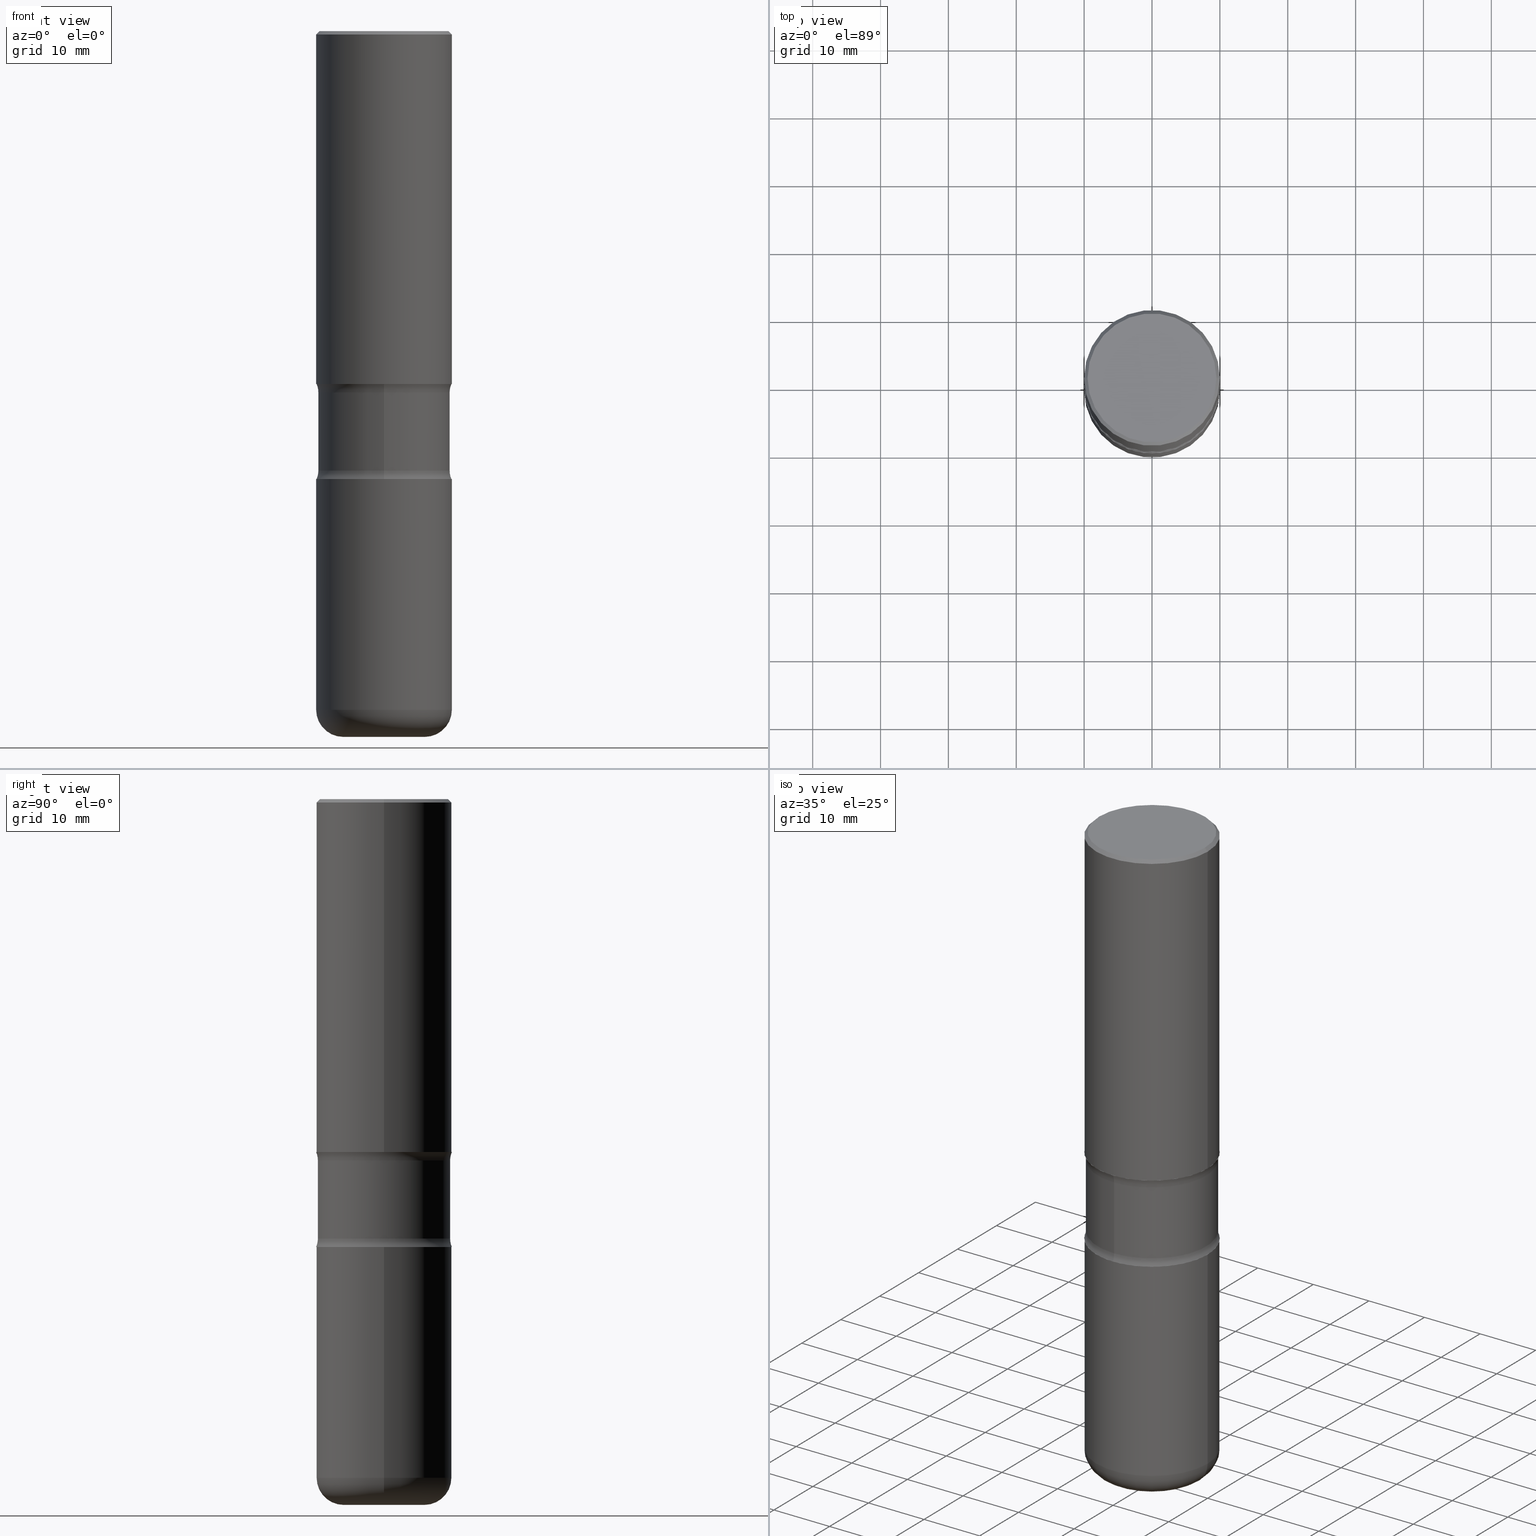
[diagram: canonical four-view strip — front | top / right | iso, engineering-drawing reading convention]
A machine part, canonical four-view strip (front | top / right | iso — engineering-drawing reading convention). The complete STEP part file that produces these views, byte-faithful:
ISO-10303-21;
HEADER;
FILE_DESCRIPTION (( 'STEP AP203' ),
    '1' );
FILE_NAME ('42738.STEP',
    '2024-03-02T02:20:32',
    ( '' ),
    ( '' ),
    'SwSTEP 2.0',
    'SolidWorks 2023',
    '' );
FILE_SCHEMA (( 'CONFIG_CONTROL_DESIGN' ));
ENDSEC;

DATA;
#1 = ORIENTED_EDGE ( 'NONE', *, *, #185, .F. ) ;
#2 = DIRECTION ( 'NONE',  ( 1.000000000000000000, -6.982962677686266711E-15, 4.876176775795935793E-29 ) ) ;
#3 = CIRCLE ( 'NONE', #556, 0.3736999999999997546 ) ;
#4 = EDGE_CURVE ( 'NONE', #108, #83, #428, .T. ) ;
#5 = DIRECTION ( 'NONE',  ( -2.445468806185136877E-29, 3.491481338843145188E-15, 1.000000000000000000 ) ) ;
#6 = ORIENTED_EDGE ( 'NONE', *, *, #102, .F. ) ;
#7 = DIRECTION ( 'NONE',  ( -2.445468806185136597E-29, 3.491481338843145583E-15, 1.000000000000000000 ) ) ;
#8 = FACE_OUTER_BOUND ( 'NONE', #26, .T. ) ;
#9 = ADVANCED_FACE ( 'NONE', ( #307 ), #364, .F. ) ;
#10 = TOROIDAL_SURFACE ( 'NONE', #182, 0.5084999999999999520, 0.1249999999999999584 ) ;
#11 = LOCAL_TIME ( 21, 20, 32.00000000000000000, #414 ) ;
#12 = ORIENTED_EDGE ( 'NONE', *, *, #64, .T. ) ;
#13 = DIRECTION ( 'NONE',  ( 6.982962677686265922E-15, 1.000000000000000000, -2.849385130288670661E-15 ) ) ;
#14 = MANIFOLD_SOLID_BREP ( 'Body-Move/Copy2[1]', #123 ) ;
#15 = CARTESIAN_POINT ( 'NONE',  ( 6.231851069229550354E-29, -8.901751109387401128E-15, -2.548943352317408095 ) ) ;
#16 = COORDINATED_UNIVERSAL_TIME_OFFSET ( 5, 0, .BEHIND. ) ;
#17 = DIRECTION ( 'NONE',  ( -1.000000000000000000, 6.982962677686266711E-15, 0.000000000000000000 ) ) ;
#18 = CIRCLE ( 'NONE', #173, 0.3937000000000002164 ) ;
#19 = VECTOR ( 'NONE', #5, 39.37007874015748143 ) ;
#20 = EDGE_CURVE ( 'NONE', #108, #89, #323, .T. ) ;
#21 = CALENDAR_DATE ( 2024, 1, 3 ) ;
#22 = CARTESIAN_POINT ( 'NONE',  ( 4.890937612370289799E-31, -6.982962677686315028E-17, -0.02000000000000006981 ) ) ;
#23 = CARTESIAN_POINT ( 'NONE',  ( 2.677966186892733991E-15, 0.3834999999999926246, -2.096756647682593400 ) ) ;
#24 = CARTESIAN_POINT ( 'NONE',  ( 1.005866236356776054E-28, -1.423043917928842489E-14, -4.094500000000000028 ) ) ;
#25 = PERSON_AND_ORGANIZATION ( #212, #160 ) ;
#26 = EDGE_LOOP ( 'NONE', ( #509, #256 ) ) ;
#27 = EDGE_CURVE ( 'NONE', #257, #431, #232, .T. ) ;
#28 = CARTESIAN_POINT ( 'NONE',  ( 6.354306145991457514E-29, -9.072265110850029467E-15, -2.598399999999999821 ) ) ;
#29 = FACE_OUTER_BOUND ( 'NONE', #409, .T. ) ;
#30 = AXIS2_PLACEMENT_3D ( 'NONE', #106, #228, #396 ) ;
#31 = EDGE_CURVE ( 'NONE', #83, #57, #429, .T. ) ;
#32 = DIRECTION ( 'NONE',  ( 2.476008433645011479E-29, -3.447746854112956913E-15, -1.000000000000000000 ) ) ;
#33 = CARTESIAN_POINT ( 'NONE',  ( -2.700978061722589721E-15, -0.3937000000000092648, -2.598399999999998489 ) ) ;
#34 = EDGE_LOOP ( 'NONE', ( #117, #12, #39, #416 ) ) ;
#35 = DIMENSIONAL_EXPONENTS ( 1.000000000000000000, 0.000000000000000000, 0.000000000000000000, 0.000000000000000000, 0.000000000000000000, 0.000000000000000000, 0.000000000000000000 ) ;
#36 = AXIS2_PLACEMENT_3D ( 'NONE', #181, #266, #390 ) ;
#37 = DIRECTION ( 'NONE',  ( -1.000000000000000000, 6.982962677686266711E-15, 0.000000000000000000 ) ) ;
#38 = DIRECTION ( 'NONE',  ( 6.982962677686265922E-15, 1.000000000000000000, -2.775563112689115117E-15 ) ) ;
#39 = ORIENTED_EDGE ( 'NONE', *, *, #349, .F. ) ;
#40 = VERTEX_POINT ( 'NONE', #235 ) ;
#41 = EDGE_LOOP ( 'NONE', ( #457, #260, #451, #425 ) ) ;
#42 = CARTESIAN_POINT ( 'NONE',  ( 3.550836521603528374E-15, 0.5084999999999910703, -2.548943352317409428 ) ) ;
#43 = CC_DESIGN_PERSON_AND_ORGANIZATION_ASSIGNMENT ( #535, #272, ( #464 ) ) ;
#44 = DIRECTION ( 'NONE',  ( 6.982962677686265922E-15, 1.000000000000000000, -3.469453890861393995E-15 ) ) ;
#45 = AXIS2_PLACEMENT_3D ( 'NONE', #274, #225, #397 ) ;
#46 = CIRCLE ( 'NONE', #30, 0.3937000000000003830 ) ;
#47 = CARTESIAN_POINT ( 'NONE',  ( 0.3736999999999997546, -2.667287895133366781E-15, 1.280553747031968579E-17 ) ) ;
#48 = CARTESIAN_POINT ( 'NONE',  ( 6.231851069229550354E-29, -8.901751109387401128E-15, -2.548943352317408095 ) ) ;
#49 = FACE_OUTER_BOUND ( 'NONE', #334, .T. ) ;
#50 = DIRECTION ( 'NONE',  ( -1.000000000000000000, 6.982962677686265922E-15, -4.883557194083112901E-29 ) ) ;
#51 = EDGE_LOOP ( 'NONE', ( #413, #473, #159, #424 ) ) ;
#52 = DIRECTION ( 'NONE',  ( -2.445468806185136597E-29, 3.491481338843145583E-15, 1.000000000000000000 ) ) ;
#53 = AXIS2_PLACEMENT_3D ( 'NONE', #88, #52, #2 ) ;
#54 = APPLICATION_CONTEXT ( 'configuration controlled 3d designs of mechanical parts and assemblies' ) ;
#55 = DIRECTION ( 'NONE',  ( 2.476008433645011479E-29, -3.447746854112956913E-15, -1.000000000000000000 ) ) ;
#56 = DATE_TIME_ROLE ( 'classification_date' ) ;
#57 = VERTEX_POINT ( 'NONE', #284 ) ;
#58 = EDGE_LOOP ( 'NONE', ( #316, #166, #420, #322 ) ) ;
#59 = CIRCLE ( 'NONE', #430, 0.3936999999999998279 ) ;
#60 = ADVANCED_FACE ( 'NONE', ( #380 ), #271, .F. ) ;
#61 = ORIENTED_EDGE ( 'NONE', *, *, #442, .T. ) ;
#62 = DATE_AND_TIME ( #448, #255 ) ;
#63 = PRODUCT_RELATED_PRODUCT_CATEGORY ( 'detail', '', ( #239 ) ) ;
#64 = EDGE_CURVE ( 'NONE', #204, #171, #121, .T. ) ;
#65 = CARTESIAN_POINT ( 'NONE',  ( -3.131554243005659264E-46, 4.471029511141341874E-32, 1.280553747030123384E-17 ) ) ;
#66 = CARTESIAN_POINT ( 'NONE',  ( -0.3937000000000001609, -8.115629352077008460E-16, -2.047299999999999898 ) ) ;
#67 = CARTESIAN_POINT ( 'NONE',  ( -2.665989521933967693E-15, -0.3835000000000073905, -2.096756647682590735 ) ) ;
#68 = ADVANCED_FACE ( 'NONE', ( #298 ), #199, .F. ) ;
#69 = ORIENTED_EDGE ( 'NONE', *, *, #332, .F. ) ;
#70 = DIRECTION ( 'NONE',  ( -2.438088387897960049E-29, 3.491481338843145188E-15, 1.000000000000000000 ) ) ;
#71 = LOCAL_TIME ( 21, 20, 32.00000000000000000, #403 ) ;
#72 = ORIENTED_EDGE ( 'NONE', *, *, #76, .T. ) ;
#73 = CALENDAR_DATE ( 2024, 1, 3 ) ;
#74 = FACE_OUTER_BOUND ( 'NONE', #376, .T. ) ;
#75 = DIRECTION ( 'NONE',  ( 2.476008433645011479E-29, -3.447746854112956913E-15, -1.000000000000000000 ) ) ;
#76 = EDGE_CURVE ( 'NONE', #206, #382, #113, .T. ) ;
#77 = DATE_AND_TIME ( #73, #11 ) ;
#78 = AXIS2_PLACEMENT_3D ( 'NONE', #549, #187, #37 ) ;
#79 = CIRCLE ( 'NONE', #169, 0.3835000000000000075 ) ;
#80 = CARTESIAN_POINT ( 'NONE',  ( 6.354306145991457514E-29, -9.072265110850029467E-15, -2.598399999999999821 ) ) ;
#81 = EDGE_CURVE ( 'NONE', #162, #109, #18, .T. ) ;
#82 = DIRECTION ( 'NONE',  ( 6.860497997771532351E-15, 1.000000000000000000, 0.000000000000000000 ) ) ;
#83 = VERTEX_POINT ( 'NONE', #23 ) ;
#84 = CYLINDRICAL_SURFACE ( 'NONE', #344, 0.3835000000000000075 ) ;
#85 = PLANE ( 'NONE',  #521 ) ;
#86 = AXIS2_PLACEMENT_3D ( 'NONE', #170, #558, #207 ) ;
#87 = FACE_OUTER_BOUND ( 'NONE', #384, .T. ) ;
#88 = CARTESIAN_POINT ( 'NONE',  ( 0.000000000000000000, 0.000000000000000000, 0.000000000000000000 ) ) ;
#89 = VERTEX_POINT ( 'NONE', #167 ) ;
#90 = APPROVAL_DATE_TIME ( #329, #268 ) ;
#91 = DIRECTION ( 'NONE',  ( 2.476008433645011479E-29, -3.447746854112956519E-15, -1.000000000000000000 ) ) ;
#92 = CIRCLE ( 'NONE', #472, 0.3937000000000001054 ) ;
#93 = CC_DESIGN_APPROVAL ( #268, ( #297 ) ) ;
#94 = DATE_AND_TIME ( #366, #331 ) ;
#95 = EDGE_CURVE ( 'NONE', #382, #206, #351, .T. ) ;
#96 = EDGE_LOOP ( 'NONE', ( #208, #72 ) ) ;
#97 = PLANE ( 'NONE',  #296 ) ;
#98 = ORIENTED_EDGE ( 'NONE', *, *, #502, .F. ) ;
#99 = APPROVAL_STATUS ( 'not_yet_approved' ) ;
#100 = EDGE_LOOP ( 'NONE', ( #164, #285 ) ) ;
#101 = VECTOR ( 'NONE', #511, 39.37007874015748143 ) ;
#102 = EDGE_CURVE ( 'NONE', #431, #109, #372, .T. ) ;
#103 = EDGE_LOOP ( 'NONE', ( #157, #69, #319, #61 ) ) ;
#104 = CARTESIAN_POINT ( 'NONE',  ( 0.000000000000000000, 0.000000000000000000, 0.000000000000000000 ) ) ;
#105 = DIRECTION ( 'NONE',  ( -0.7071067811865471286, 2.468850131082252722E-15, -0.7071067811865479058 ) ) ;
#106 = CARTESIAN_POINT ( 'NONE',  ( 9.627810689950881427E-29, -1.374596203102546184E-14, -3.936999999999999389 ) ) ;
#107 = APPROVAL_DATE_TIME ( #77, #283 ) ;
#108 = VERTEX_POINT ( 'NONE', #67 ) ;
#109 = VERTEX_POINT ( 'NONE', #335 ) ;
#110 = ORIENTED_EDGE ( 'NONE', *, *, #4, .T. ) ;
#111 = ORIENTED_EDGE ( 'NONE', *, *, #226, .T. ) ;
#112 = CIRCLE ( 'NONE', #439, 0.2362000000000003819 ) ;
#113 = CIRCLE ( 'NONE', #168, 0.3937000000000002164 ) ;
#114 =( GEOMETRIC_REPRESENTATION_CONTEXT ( 3 ) GLOBAL_UNCERTAINTY_ASSIGNED_CONTEXT ( ( #491 ) ) GLOBAL_UNIT_ASSIGNED_CONTEXT ( ( #315, #540, #144 ) ) REPRESENTATION_CONTEXT ( 'NONE', 'WORKASPACE' ) );
#115 = SHAPE_DEFINITION_REPRESENTATION ( #150, #253 ) ;
#116 = CC_DESIGN_PERSON_AND_ORGANIZATION_ASSIGNMENT ( #527, #138, ( #297 ) ) ;
#117 = ORIENTED_EDGE ( 'NONE', *, *, #328, .T. ) ;
#118 = DIRECTION ( 'NONE',  ( -6.982962677686266711E-15, -1.000000000000000000, 3.491481338843145583E-15 ) ) ;
#119 = EDGE_CURVE ( 'NONE', #40, #310, #112, .T. ) ;
#120 = ORIENTED_EDGE ( 'NONE', *, *, #226, .F. ) ;
#121 = LINE ( 'NONE', #339, #411 ) ;
#122 = ADVANCED_FACE ( 'NONE', ( #541 ), #231, .T. ) ;
#123 = CLOSED_SHELL ( 'NONE', ( #383, #240, #218, #455, #476, #270 ) ) ;
#124 = DIRECTION ( 'NONE',  ( 2.476008433645011479E-29, -3.447746854112956913E-15, -1.000000000000000000 ) ) ;
#125 = DIRECTION ( 'NONE',  ( 6.982962677686265922E-15, 1.000000000000000000, -2.849385130288670661E-15 ) ) ;
#126 = DIRECTION ( 'NONE',  ( 6.982962677686265133E-15, 1.000000000000000000, -3.447746854112956913E-15 ) ) ;
#127 = DIRECTION ( 'NONE',  ( -2.445468806185136597E-29, 3.491481338843145583E-15, 1.000000000000000000 ) ) ;
#128 = AXIS2_PLACEMENT_3D ( 'NONE', #358, #498, #410 ) ;
#129 = LINE ( 'NONE', #304, #19 ) ;
#130 = TOROIDAL_SURFACE ( 'NONE', #254, 0.2362000000000003264, 0.1574999999999998346 ) ;
#131 = FACE_OUTER_BOUND ( 'NONE', #362, .T. ) ;
#132 = ADVANCED_FACE ( 'NONE', ( #485 ), #241, .T. ) ;
#133 = CARTESIAN_POINT ( 'NONE',  ( 2.749192406205147903E-15, 0.3936999999999912236, -2.598400000000000709 ) ) ;
#134 = DIRECTION ( 'NONE',  ( -2.476008433645011199E-29, 3.447746854112956519E-15, 1.000000000000000000 ) ) ;
#135 = CARTESIAN_POINT ( 'NONE',  ( 1.005866236356776054E-28, -1.423043917928842489E-14, -4.094500000000000028 ) ) ;
#136 = CARTESIAN_POINT ( 'NONE',  ( -0.3937000000000002164, -8.611706820250229288E-15, -2.598399999999999821 ) ) ;
#137 = FACE_OUTER_BOUND ( 'NONE', #492, .T. ) ;
#138 = PERSON_AND_ORGANIZATION_ROLE ( 'design_supplier' ) ;
#139 = DIRECTION ( 'NONE',  ( -2.445468806185136597E-29, 3.491481338843145583E-15, 1.000000000000000000 ) ) ;
#140 = DIRECTION ( 'NONE',  ( 6.982962677686265133E-15, 1.000000000000000000, -3.447746854112956913E-15 ) ) ;
#141 = ADVANCED_FACE ( 'NONE', ( #538 ), #367, .F. ) ;
#142 = CYLINDRICAL_SURFACE ( 'NONE', #287, 0.3835000000000000075 ) ;
#143 = DIRECTION ( 'NONE',  ( -1.000000000000000000, 6.982962677686265922E-15, -4.876176775795935793E-29 ) ) ;
#144 =( NAMED_UNIT ( * ) SI_UNIT ( $, .STERADIAN. ) SOLID_ANGLE_UNIT ( ) );
#145 = AXIS2_PLACEMENT_3D ( 'NONE', #22, #395, #17 ) ;
#146 = CIRCLE ( 'NONE', #337, 0.3936999999999998279 ) ;
#147 = ADVANCED_FACE ( 'NONE', ( #29 ), #493, .T. ) ;
#148 = PERSON_AND_ORGANIZATION_ROLE ( 'design_owner' ) ;
#149 = DIRECTION ( 'NONE',  ( 1.000000000000000000, -6.982962677686269077E-15, 0.000000000000000000 ) ) ;
#150 = PRODUCT_DEFINITION_SHAPE ( 'NONE', 'NONE',  #193 ) ;
#151 = DIRECTION ( 'NONE',  ( -1.000000000000000000, 7.105427357601005014E-15, 0.000000000000000000 ) ) ;
#152 = DIRECTION ( 'NONE',  ( -2.445468806185136597E-29, 3.491481338843145583E-15, 1.000000000000000000 ) ) ;
#153 = EDGE_CURVE ( 'NONE', #40, #257, #189, .T. ) ;
#154 = APPROVAL_ROLE ( '' ) ;
#155 = FACE_OUTER_BOUND ( 'NONE', #34, .T. ) ;
#156 = DIRECTION ( 'NONE',  ( 2.476008433645011479E-29, -3.447746854112956913E-15, -1.000000000000000000 ) ) ;
#157 = ORIENTED_EDGE ( 'NONE', *, *, #222, .F. ) ;
#158 = AXIS2_PLACEMENT_3D ( 'NONE', #42, #50, #426 ) ;
#159 = ORIENTED_EDGE ( 'NONE', *, *, #502, .T. ) ;
#160 = ORGANIZATION ( 'UNSPECIFIED', 'UNSPECIFIED', '' ) ;
#161 = CARTESIAN_POINT ( 'NONE',  ( 9.627810689950881427E-29, -1.374596203102546184E-14, -3.936999999999999389 ) ) ;
#162 = VERTEX_POINT ( 'NONE', #136 ) ;
#163 = VERTEX_POINT ( 'NONE', #405 ) ;
#164 = ORIENTED_EDGE ( 'NONE', *, *, #185, .T. ) ;
#165 = DIRECTION ( 'NONE',  ( 6.982962677686265922E-15, 1.000000000000000000, -2.849385130288670661E-15 ) ) ;
#166 = ORIENTED_EDGE ( 'NONE', *, *, #95, .F. ) ;
#167 = CARTESIAN_POINT ( 'NONE',  ( -2.665989521933955072E-15, -0.3835000000000088893, -2.548943352317407207 ) ) ;
#168 = AXIS2_PLACEMENT_3D ( 'NONE', #80, #203, #552 ) ;
#169 = AXIS2_PLACEMENT_3D ( 'NONE', #48, #394, #13 ) ;
#170 = CARTESIAN_POINT ( 'NONE',  ( -3.488563231866761079E-15, -0.5085000000000088338, -2.548943352317405875 ) ) ;
#171 = VERTEX_POINT ( 'NONE', #281 ) ;
#172 = CC_DESIGN_PERSON_AND_ORGANIZATION_ASSIGNMENT ( #355, #495, ( #297 ) ) ;
#173 = AXIS2_PLACEMENT_3D ( 'NONE', #28, #200, #546 ) ;
#174 = AXIS2_PLACEMENT_3D ( 'NONE', #365, #184, #276 ) ;
#175 = CARTESIAN_POINT ( 'NONE',  ( 2.609533152651355831E-15, 0.3736999999999997546, -1.298363807590532206E-15 ) ) ;
#176 = FACE_OUTER_BOUND ( 'NONE', #379, .T. ) ;
#177 = ORIENTED_EDGE ( 'NONE', *, *, #222, .T. ) ;
#178 = EDGE_CURVE ( 'NONE', #462, #171, #532, .T. ) ;
#179 = CARTESIAN_POINT ( 'NONE',  ( -2.700978061722603132E-15, -0.3937000000000074884, -2.047299999999998565 ) ) ;
#180 = CARTESIAN_POINT ( 'NONE',  ( 4.890937612370289799E-31, -6.982962677686315028E-17, -0.02000000000000006981 ) ) ;
#181 = CARTESIAN_POINT ( 'NONE',  ( 5.006608286902829344E-29, -7.148109745013571714E-15, -2.047299999999999898 ) ) ;
#182 = AXIS2_PLACEMENT_3D ( 'NONE', #183, #529, #126 ) ;
#183 = CARTESIAN_POINT ( 'NONE',  ( 6.233361456825190849E-29, -8.899588148384518828E-15, -2.548943352317407651 ) ) ;
#184 = DIRECTION ( 'NONE',  ( 0.000000000000000000, 0.000000000000000000, 1.000000000000000000 ) ) ;
#185 = EDGE_CURVE ( 'NONE', #109, #162, #214, .T. ) ;
#186 = DIRECTION ( 'NONE',  ( 2.438088387897960049E-29, -3.491481338843145188E-15, -1.000000000000000000 ) ) ;
#187 = DIRECTION ( 'NONE',  ( 2.445468806185136597E-29, -3.491481338843145583E-15, -1.000000000000000000 ) ) ;
#188 = APPLICATION_PROTOCOL_DEFINITION ( 'international standard', 'config_control_design', 1994, #54 ) ;
#189 = CIRCLE ( 'NONE', #453, 0.1574999999999998346 ) ;
#190 = TOROIDAL_SURFACE ( 'NONE', #402, 0.5084999999999999520, 0.1250000000000000278 ) ;
#191 = DIRECTION ( 'NONE',  ( 6.982962677686265922E-15, 1.000000000000000000, -2.849385130288670661E-15 ) ) ;
#192 = TOROIDAL_SURFACE ( 'NONE', #393, 0.2362000000000003264, 0.1574999999999998346 ) ;
#193 = PRODUCT_DEFINITION ( 'UNKNOWN', '', #297, #251 ) ;
#194 = PERSON_AND_ORGANIZATION_ROLE ( 'creator' ) ;
#195 = DIRECTION ( 'NONE',  ( -2.445468806185136597E-29, 3.491481338843145583E-15, 1.000000000000000000 ) ) ;
#196 = ORIENTED_EDGE ( 'NONE', *, *, #291, .F. ) ;
#197 = DIRECTION ( 'NONE',  ( -2.445468806185136597E-29, 3.491481338843145583E-15, 1.000000000000000000 ) ) ;
#198 = ORIENTED_EDGE ( 'NONE', *, *, #399, .F. ) ;
#199 = TOROIDAL_SURFACE ( 'NONE', #128, 0.5084999999999999520, 0.1249999999999999584 ) ;
#200 = DIRECTION ( 'NONE',  ( -2.445468806185136597E-29, 3.491481338843145583E-15, 1.000000000000000000 ) ) ;
#201 = MANIFOLD_SOLID_BREP ( 'Body-Move/Copy2[4]', #314 ) ;
#202 = CC_DESIGN_DATE_AND_TIME_ASSIGNMENT ( #441, #56, ( #464 ) ) ;
#203 = DIRECTION ( 'NONE',  ( 2.476008433645011479E-29, -3.447746854112956913E-15, -1.000000000000000000 ) ) ;
#204 = VERTEX_POINT ( 'NONE', #66 ) ;
#205 = APPROVAL_STATUS ( 'not_yet_approved' ) ;
#206 = VERTEX_POINT ( 'NONE', #33 ) ;
#207 = DIRECTION ( 'NONE',  ( 6.860497997771532351E-15, 1.000000000000000000, 0.000000000000000000 ) ) ;
#208 = ORIENTED_EDGE ( 'NONE', *, *, #95, .T. ) ;
#209 = CLOSED_SHELL ( 'NONE', ( #211, #147, #132, #398, #141, #122 ) ) ;
#210 = CIRCLE ( 'NONE', #86, 0.1249999999999999584 ) ;
#211 = ADVANCED_FACE ( 'NONE', ( #155 ), #496, .T. ) ;
#212 = PERSON ( 'UNSPECIFIED', 'UNSPECIFIED', 'UNSPECIFIED', ('UNSPECIFIED'), ('UNSPECIFIED'), ('UNSPECIFIED') ) ;
#213 = CARTESIAN_POINT ( 'NONE',  ( -3.131554243005659264E-46, 4.471029511141341874E-32, 1.280553747030123384E-17 ) ) ;
#214 = CIRCLE ( 'NONE', #533, 0.3937000000000002164 ) ;
#215 = AXIS2_PLACEMENT_3D ( 'NONE', #302, #124, #336 ) ;
#216 = DIRECTION ( 'NONE',  ( 2.438088387897960049E-29, -3.491481338843145188E-15, -1.000000000000000000 ) ) ;
#217 = LOCAL_TIME ( 21, 20, 32.00000000000000000, #16 ) ;
#218 = ADVANCED_FACE ( 'NONE', ( #74 ), #246, .T. ) ;
#219 = CARTESIAN_POINT ( 'NONE',  ( 0.3937000000000002164, -1.649515443723054663E-14, -3.936999999999999389 ) ) ;
#220 = CARTESIAN_POINT ( 'NONE',  ( 2.677966186892783295E-15, 0.3834999999999857967, -4.094500000000000917 ) ) ;
#221 = CARTESIAN_POINT ( 'NONE',  ( 0.000000000000000000, 0.000000000000000000, 0.000000000000000000 ) ) ;
#222 = EDGE_CURVE ( 'NONE', #236, #550, #477, .T. ) ;
#223 = CC_DESIGN_SECURITY_CLASSIFICATION ( #464, ( #297 ) ) ;
#224 = PERSON_AND_ORGANIZATION ( #212, #160 ) ;
#225 = DIRECTION ( 'NONE',  ( -2.445468806185136597E-29, 3.491481338843145583E-15, 1.000000000000000000 ) ) ;
#226 = EDGE_CURVE ( 'NONE', #431, #257, #46, .T. ) ;
#227 = CARTESIAN_POINT ( 'NONE',  ( 8.872370585012628009E-29, -5.466253514844332683E-15, -2.598400000000000265 ) ) ;
#228 = DIRECTION ( 'NONE',  ( -2.445468806185136597E-29, 3.491481338843145583E-15, 1.000000000000000000 ) ) ;
#229 = DIRECTION ( 'NONE',  ( 6.982962677686265922E-15, 1.000000000000000000, -3.469453890861393995E-15 ) ) ;
#230 = APPROVAL_ROLE ( '' ) ;
#231 = CYLINDRICAL_SURFACE ( 'NONE', #482, 0.3936999999999999389 ) ;
#232 = CIRCLE ( 'NONE', #45, 0.3937000000000003830 ) ;
#233 = CIRCLE ( 'NONE', #158, 0.1249999999999999584 ) ;
#234 = CC_DESIGN_PERSON_AND_ORGANIZATION_ASSIGNMENT ( #537, #148, ( #239 ) ) ;
#235 = CARTESIAN_POINT ( 'NONE',  ( -0.2362000000000003819, -1.178306184018292331E-14, -4.094499999999999140 ) ) ;
#236 = VERTEX_POINT ( 'NONE', #47 ) ;
#237 = DIRECTION ( 'NONE',  ( 2.476008433645011479E-29, -3.447746854112956913E-15, -1.000000000000000000 ) ) ;
#238 = DIRECTION ( 'NONE',  ( 1.000000000000000000, -6.982962677686269077E-15, 0.000000000000000000 ) ) ;
#239 = PRODUCT ( '42738', '42738', '', ( #356 ) ) ;
#240 = ADVANCED_FACE ( 'NONE', ( #49 ), #130, .T. ) ;
#241 = CONICAL_SURFACE ( 'NONE', #145, 0.3936999999999998279, 0.7853981633974477239 ) ;
#242 = CIRCLE ( 'NONE', #370, 0.3937000000000002164 ) ;
#243 = APPROVAL_PERSON_ORGANIZATION ( #224, #283, #559 ) ;
#244 = EDGE_CURVE ( 'NONE', #57, #465, #505, .T. ) ;
#245 = ORIENTED_EDGE ( 'NONE', *, *, #349, .T. ) ;
#246 = PLANE ( 'NONE',  #504 ) ;
#247 = DIRECTION ( 'NONE',  ( -1.000000000000000000, 6.982962677686265922E-15, -4.876176775795935793E-29 ) ) ;
#248 = DIRECTION ( 'NONE',  ( 6.982962677686265133E-15, 1.000000000000000000, -3.447746854112956913E-15 ) ) ;
#249 = ORIENTED_EDGE ( 'NONE', *, *, #548, .F. ) ;
#250 = EDGE_CURVE ( 'NONE', #163, #89, #377, .T. ) ;
#251 = DESIGN_CONTEXT ( 'detailed design', #54, 'design' ) ;
#252 = VECTOR ( 'NONE', #105, 39.37007874015748143 ) ;
#253 = ADVANCED_BREP_SHAPE_REPRESENTATION ( '42738', ( #14, #381, #201, #174 ), #114 ) ;
#254 = AXIS2_PLACEMENT_3D ( 'NONE', #161, #152, #313 ) ;
#255 = LOCAL_TIME ( 21, 20, 32.00000000000000000, #320 ) ;
#256 = ORIENTED_EDGE ( 'NONE', *, *, #539, .F. ) ;
#257 = VERTEX_POINT ( 'NONE', #497 ) ;
#258 = ORIENTED_EDGE ( 'NONE', *, *, #548, .T. ) ;
#259 = CARTESIAN_POINT ( 'NONE',  ( 4.890937612370289799E-31, -6.982962677686315028E-17, -0.02000000000000006981 ) ) ;
#260 = ORIENTED_EDGE ( 'NONE', *, *, #291, .T. ) ;
#261 = AXIS2_PLACEMENT_3D ( 'NONE', #104, #299, #506 ) ;
#262 = EDGE_LOOP ( 'NONE', ( #288, #487, #374, #475 ) ) ;
#263 = AXIS2_PLACEMENT_3D ( 'NONE', #15, #444, #191 ) ;
#264 = DIRECTION ( 'NONE',  ( 1.000000000000000000, -6.982962677686266711E-15, 0.000000000000000000 ) ) ;
#265 = CARTESIAN_POINT ( 'NONE',  ( 3.550836521603517725E-15, 0.5084999999999926246, -2.096756647682593844 ) ) ;
#266 = DIRECTION ( 'NONE',  ( 2.476008433645011199E-29, -3.447746854112956519E-15, -1.000000000000000000 ) ) ;
#267 = CARTESIAN_POINT ( 'NONE',  ( 8.872370585012628009E-29, -5.466253514844332683E-15, -2.598400000000000265 ) ) ;
#268 = APPROVAL ( #400, 'UNSPECIFIED' ) ;
#269 = DIRECTION ( 'NONE',  ( -2.445468806185136597E-29, 3.491481338843145583E-15, 1.000000000000000000 ) ) ;
#270 = ADVANCED_FACE ( 'NONE', ( #528 ), #97, .F. ) ;
#271 = TOROIDAL_SURFACE ( 'NONE', #392, 0.5084999999999999520, 0.1250000000000000278 ) ;
#272 = PERSON_AND_ORGANIZATION_ROLE ( 'classification_officer' ) ;
#273 = CIRCLE ( 'NONE', #544, 0.1574999999999998346 ) ;
#274 = CARTESIAN_POINT ( 'NONE',  ( 9.627810689950881427E-29, -1.374596203102546184E-14, -3.936999999999999389 ) ) ;
#275 = DATE_TIME_ROLE ( 'creation_date' ) ;
#276 = DIRECTION ( 'NONE',  ( 1.000000000000000000, 0.000000000000000000, 0.000000000000000000 ) ) ;
#277 = CARTESIAN_POINT ( 'NONE',  ( 4.989777898209692525E-29, -7.172211819548379016E-15, -2.047299999999999898 ) ) ;
#278 = CARTESIAN_POINT ( 'NONE',  ( 0.3936999999999998279, -2.770807688499514156E-15, -0.02000000000000006981 ) ) ;
#279 = APPROVAL_DATE_TIME ( #62, #368 ) ;
#280 = AXIS2_PLACEMENT_3D ( 'NONE', #65, #139, #408 ) ;
#281 = CARTESIAN_POINT ( 'NONE',  ( -0.3936999999999998279, 2.679362779428218735E-15, -0.02000000000000006981 ) ) ;
#282 =( LENGTH_UNIT ( ) NAMED_UNIT ( * ) SI_UNIT ( $, .METRE. ) );
#283 = APPROVAL ( #205, 'UNSPECIFIED' ) ;
#284 = CARTESIAN_POINT ( 'NONE',  ( 2.749192406205134887E-15, 0.3936999999999931110, -2.047300000000001230 ) ) ;
#285 = ORIENTED_EDGE ( 'NONE', *, *, #81, .T. ) ;
#286 = ADVANCED_FACE ( 'NONE', ( #468 ), #84, .T. ) ;
#287 = AXIS2_PLACEMENT_3D ( 'NONE', #24, #237, #165 ) ;
#288 = ORIENTED_EDGE ( 'NONE', *, *, #4, .F. ) ;
#289 = CARTESIAN_POINT ( 'NONE',  ( 1.001297202692503990E-28, -1.429587034189325834E-14, -4.094499999999999140 ) ) ;
#290 = DIRECTION ( 'NONE',  ( 1.000000000000000000, -6.982962677686269866E-15, 0.000000000000000000 ) ) ;
#291 = EDGE_CURVE ( 'NONE', #204, #456, #92, .T. ) ;
#292 = ORIENTED_EDGE ( 'NONE', *, *, #308, .T. ) ;
#293 = ORIENTED_EDGE ( 'NONE', *, *, #20, .F. ) ;
#294 = ORIENTED_EDGE ( 'NONE', *, *, #479, .F. ) ;
#295 = DIRECTION ( 'NONE',  ( -2.445468806185136877E-29, 3.491481338843145188E-15, 1.000000000000000000 ) ) ;
#296 = AXIS2_PLACEMENT_3D ( 'NONE', #227, #186, #525 ) ;
#297 = PRODUCT_DEFINITION_FORMATION_WITH_SPECIFIED_SOURCE ( 'ANY', '', #239, .NOT_KNOWN. ) ;
#298 = FACE_OUTER_BOUND ( 'NONE', #58, .T. ) ;
#299 = DIRECTION ( 'NONE',  ( -2.445468806185136597E-29, 3.491481338843145583E-15, 1.000000000000000000 ) ) ;
#300 = EDGE_LOOP ( 'NONE', ( #460, #557, #500, #555 ) ) ;
#301 = ADVANCED_FACE ( 'NONE', ( #137 ), #142, .T. ) ;
#302 = CARTESIAN_POINT ( 'NONE',  ( 5.112232974971601928E-29, -7.342725821011008933E-15, -2.096756647682592067 ) ) ;
#303 = DIRECTION ( 'NONE',  ( -2.445468806185136597E-29, 3.491481338843145583E-15, 1.000000000000000000 ) ) ;
#304 = CARTESIAN_POINT ( 'NONE',  ( -0.3937000000000002720, 2.797406750687516364E-15, -1.936584745033358137E-29 ) ) ;
#305 = VECTOR ( 'NONE', #389, 39.37007874015748143 ) ;
#306 = CARTESIAN_POINT ( 'NONE',  ( -3.488563231866771728E-15, -0.5085000000000072795, -2.096756647682590735 ) ) ;
#307 = FACE_OUTER_BOUND ( 'NONE', #96, .T. ) ;
#308 = EDGE_CURVE ( 'NONE', #206, #89, #210, .T. ) ;
#309 = FACE_OUTER_BOUND ( 'NONE', #51, .T. ) ;
#310 = VERTEX_POINT ( 'NONE', #350 ) ;
#311 = PERSON_AND_ORGANIZATION ( #212, #160 ) ;
#312 = DIRECTION ( 'NONE',  ( -6.982962677686265922E-15, -1.000000000000000000, 3.447746854112956519E-15 ) ) ;
#313 = DIRECTION ( 'NONE',  ( 1.000000000000000000, -6.982962677686265922E-15, 4.883557194083112340E-29 ) ) ;
#314 = CLOSED_SHELL ( 'NONE', ( #286, #338, #60, #324, #433, #9, #68, #301 ) ) ;
#315 =( CONVERSION_BASED_UNIT ( 'INCH', #486 ) LENGTH_UNIT ( ) NAMED_UNIT ( #35 ) );
#316 = ORIENTED_EDGE ( 'NONE', *, *, #308, .F. ) ;
#317 = DIRECTION ( 'NONE',  ( -2.445468806185136597E-29, 3.491481338843145583E-15, 1.000000000000000000 ) ) ;
#318 = AXIS2_PLACEMENT_3D ( 'NONE', #306, #353, #82 ) ;
#319 = ORIENTED_EDGE ( 'NONE', *, *, #178, .T. ) ;
#320 = COORDINATED_UNIVERSAL_TIME_OFFSET ( 5, 0, .BEHIND. ) ;
#321 = DIRECTION ( 'NONE',  ( 1.000000000000000000, -6.982962677686266711E-15, 4.876176775795935793E-29 ) ) ;
#322 = ORIENTED_EDGE ( 'NONE', *, *, #250, .T. ) ;
#323 = LINE ( 'NONE', #481, #360 ) ;
#324 = ADVANCED_FACE ( 'NONE', ( #131 ), #190, .F. ) ;
#325 = DIRECTION ( 'NONE',  ( 1.000000000000000000, -6.982962677686266711E-15, 4.876212485538978481E-29 ) ) ;
#326 = ORIENTED_EDGE ( 'NONE', *, *, #244, .T. ) ;
#327 = ORIENTED_EDGE ( 'NONE', *, *, #359, .F. ) ;
#328 = EDGE_CURVE ( 'NONE', #456, #204, #363, .T. ) ;
#329 = DATE_AND_TIME ( #450, #217 ) ;
#330 = AXIS2_PLACEMENT_3D ( 'NONE', #480, #70, #415 ) ;
#331 = LOCAL_TIME ( 21, 20, 32.00000000000000000, #443 ) ;
#332 = EDGE_CURVE ( 'NONE', #462, #236, #387, .T. ) ;
#333 = ORIENTED_EDGE ( 'NONE', *, *, #471, .T. ) ;
#334 = EDGE_LOOP ( 'NONE', ( #547, #467, #120, #98 ) ) ;
#335 = CARTESIAN_POINT ( 'NONE',  ( 0.3937000000000002164, -1.182145751705511584E-14, -2.598399999999999821 ) ) ;
#336 = DIRECTION ( 'NONE',  ( 6.982962677686265922E-15, 1.000000000000000000, -3.561731412860838918E-15 ) ) ;
#337 = AXIS2_PLACEMENT_3D ( 'NONE', #259, #514, #516 ) ;
#338 = ADVANCED_FACE ( 'NONE', ( #452 ), #10, .F. ) ;
#339 = CARTESIAN_POINT ( 'NONE',  ( -0.3936999999999999389, 2.797406750687513998E-15, -1.936584745033356455E-29 ) ) ;
#340 = CARTESIAN_POINT ( 'NONE',  ( 5.006608286902829344E-29, -7.148109745013571714E-15, -2.047299999999999898 ) ) ;
#341 = ORIENTED_EDGE ( 'NONE', *, *, #27, .T. ) ;
#342 = CARTESIAN_POINT ( 'NONE',  ( 0.3937000000000002720, -2.749192406205085189E-15, 1.919750796630861293E-29 ) ) ;
#343 = ORIENTED_EDGE ( 'NONE', *, *, #423, .T. ) ;
#344 = AXIS2_PLACEMENT_3D ( 'NONE', #135, #55, #125 ) ;
#345 = EDGE_CURVE ( 'NONE', #456, #550, #518, .T. ) ;
#346 = LINE ( 'NONE', #220, #454 ) ;
#347 = CYLINDRICAL_SURFACE ( 'NONE', #447, 0.3937000000000002720 ) ;
#348 = CARTESIAN_POINT ( 'NONE',  ( 5.127552976069098251E-29, -7.320786707479082352E-15, -2.096756647682592067 ) ) ;
#349 = EDGE_CURVE ( 'NONE', #550, #171, #59, .T. ) ;
#350 = CARTESIAN_POINT ( 'NONE',  ( 0.2362000000000003819, -1.594524612636275802E-14, -4.094499999999999140 ) ) ;
#351 = CIRCLE ( 'NONE', #470, 0.3937000000000002164 ) ;
#352 = APPROVAL_PERSON_ORGANIZATION ( #311, #268, #154 ) ;
#353 = DIRECTION ( 'NONE',  ( 1.000000000000000000, -6.860497997771530774E-15, 4.841334472591514894E-29 ) ) ;
#354 = ORIENTED_EDGE ( 'NONE', *, *, #81, .F. ) ;
#355 = PERSON_AND_ORGANIZATION ( #212, #160 ) ;
#356 = MECHANICAL_CONTEXT ( 'NONE', #438, 'mechanical' ) ;
#357 = CARTESIAN_POINT ( 'NONE',  ( 0.000000000000000000, 0.000000000000000000, 0.000000000000000000 ) ) ;
#358 = CARTESIAN_POINT ( 'NONE',  ( 6.233361456825190849E-29, -8.899588148384518828E-15, -2.548943352317407651 ) ) ;
#359 = EDGE_CURVE ( 'NONE', #108, #465, #412, .T. ) ;
#360 = VECTOR ( 'NONE', #91, 39.37007874015748143 ) ;
#361 = SECURITY_CLASSIFICATION_LEVEL ( 'unclassified' ) ;
#362 = EDGE_LOOP ( 'NONE', ( #327, #294, #488, #326 ) ) ;
#363 = CIRCLE ( 'NONE', #463, 0.3937000000000001054 ) ;
#364 = PLANE ( 'NONE',  #375 ) ;
#365 = CARTESIAN_POINT ( 'NONE',  ( 0.000000000000000000, 0.000000000000000000, 0.000000000000000000 ) ) ;
#366 = CALENDAR_DATE ( 2024, 1, 3 ) ;
#367 = PLANE ( 'NONE',  #330 ) ;
#368 = APPROVAL ( #99, 'UNSPECIFIED' ) ;
#369 = AXIS2_PLACEMENT_3D ( 'NONE', #524, #436, #401 ) ;
#370 = AXIS2_PLACEMENT_3D ( 'NONE', #458, #75, #44 ) ;
#371 = CARTESIAN_POINT ( 'NONE',  ( 0.3936999999999999389, -2.749192406205082822E-15, 1.919750796630859611E-29 ) ) ;
#372 = LINE ( 'NONE', #342, #101 ) ;
#373 = ORIENTED_EDGE ( 'NONE', *, *, #378, .T. ) ;
#374 = ORIENTED_EDGE ( 'NONE', *, *, #539, .T. ) ;
#375 = AXIS2_PLACEMENT_3D ( 'NONE', #267, #134, #312 ) ;
#376 = EDGE_LOOP ( 'NONE', ( #198, #459 ) ) ;
#377 = CIRCLE ( 'NONE', #263, 0.3835000000000000075 ) ;
#378 = EDGE_CURVE ( 'NONE', #257, #162, #129, .T. ) ;
#379 = EDGE_LOOP ( 'NONE', ( #111, #373, #1, #6 ) ) ;
#380 = FACE_OUTER_BOUND ( 'NONE', #262, .T. ) ;
#381 = MANIFOLD_SOLID_BREP ( 'Body-Move/Copy2[2]', #209 ) ;
#382 = VERTEX_POINT ( 'NONE', #133 ) ;
#383 = ADVANCED_FACE ( 'NONE', ( #176 ), #347, .T. ) ;
#384 = EDGE_LOOP ( 'NONE', ( #427, #258 ) ) ;
#385 = DIRECTION ( 'NONE',  ( -2.445468806185136597E-29, 3.491481338843145583E-15, 1.000000000000000000 ) ) ;
#386 = AXIS2_PLACEMENT_3D ( 'NONE', #265, #501, #489 ) ;
#387 = CIRCLE ( 'NONE', #280, 0.3736999999999997546 ) ;
#388 = DIRECTION ( 'NONE',  ( 1.000000000000000000, -6.982962677686265922E-15, 4.883557194083112340E-29 ) ) ;
#389 = DIRECTION ( 'NONE',  ( -2.445468806185136877E-29, 3.491481338843145188E-15, 1.000000000000000000 ) ) ;
#390 = DIRECTION ( 'NONE',  ( 6.982962677686265922E-15, 1.000000000000000000, -3.447746854112956519E-15 ) ) ;
#391 = FACE_OUTER_BOUND ( 'NONE', #417, .T. ) ;
#392 = AXIS2_PLACEMENT_3D ( 'NONE', #348, #517, #248 ) ;
#393 = AXIS2_PLACEMENT_3D ( 'NONE', #435, #7, #388 ) ;
#394 = DIRECTION ( 'NONE',  ( 2.476008433645011479E-29, -3.447746854112956913E-15, -1.000000000000000000 ) ) ;
#395 = DIRECTION ( 'NONE',  ( 2.445468806185136597E-29, -3.491481338843145583E-15, -1.000000000000000000 ) ) ;
#396 = DIRECTION ( 'NONE',  ( 1.000000000000000000, -6.982962677686266711E-15, 0.000000000000000000 ) ) ;
#397 = DIRECTION ( 'NONE',  ( 1.000000000000000000, -6.982962677686266711E-15, 0.000000000000000000 ) ) ;
#398 = ADVANCED_FACE ( 'NONE', ( #87 ), #85, .F. ) ;
#399 = EDGE_CURVE ( 'NONE', #310, #40, #494, .T. ) ;
#400 = APPROVAL_STATUS ( 'not_yet_approved' ) ;
#401 = DIRECTION ( 'NONE',  ( 6.982962677686265922E-15, 1.000000000000000000, -3.561731412860838918E-15 ) ) ;
#402 = AXIS2_PLACEMENT_3D ( 'NONE', #490, #156, #140 ) ;
#403 = COORDINATED_UNIVERSAL_TIME_OFFSET ( 5, 0, .BEHIND. ) ;
#404 = APPROVAL_PERSON_ORGANIZATION ( #484, #368, #230 ) ;
#405 = CARTESIAN_POINT ( 'NONE',  ( 2.677966186892745036E-15, 0.3834999999999911258, -2.548943352317409428 ) ) ;
#406 = APPLICATION_PROTOCOL_DEFINITION ( 'international standard', 'config_control_design', 1994, #438 ) ;
#407 = CARTESIAN_POINT ( 'NONE',  ( -0.3936999999999998279, 2.679362779428218735E-15, -0.02000000000000006981 ) ) ;
#408 = DIRECTION ( 'NONE',  ( 1.000000000000000000, -6.982962677686266711E-15, 4.876212485538978481E-29 ) ) ;
#409 = EDGE_LOOP ( 'NONE', ( #249, #177, #245, #499 ) ) ;
#410 = DIRECTION ( 'NONE',  ( 6.982962677686265133E-15, 1.000000000000000000, -3.447746854112956913E-15 ) ) ;
#411 = VECTOR ( 'NONE', #295, 39.37007874015748143 ) ;
#412 = CIRCLE ( 'NONE', #318, 0.1250000000000000278 ) ;
#413 = ORIENTED_EDGE ( 'NONE', *, *, #153, .F. ) ;
#414 = COORDINATED_UNIVERSAL_TIME_OFFSET ( 5, 0, .BEHIND. ) ;
#415 = DIRECTION ( 'NONE',  ( 1.000000000000000000, -6.982962677686265922E-15, 4.876176775795935793E-29 ) ) ;
#416 = ORIENTED_EDGE ( 'NONE', *, *, #345, .F. ) ;
#417 = EDGE_LOOP ( 'NONE', ( #553, #341, #543, #354 ) ) ;
#418 = CC_DESIGN_DATE_AND_TIME_ASSIGNMENT ( #94, #275, ( #193 ) ) ;
#419 = DIRECTION ( 'NONE',  ( 1.000000000000000000, -6.982962677686269077E-15, 0.000000000000000000 ) ) ;
#420 = ORIENTED_EDGE ( 'NONE', *, *, #461, .T. ) ;
#421 = CARTESIAN_POINT ( 'NONE',  ( 6.354306145991457514E-29, -9.072265110850029467E-15, -2.598399999999999821 ) ) ;
#422 = AXIS2_PLACEMENT_3D ( 'NONE', #437, #269, #419 ) ;
#423 = EDGE_CURVE ( 'NONE', #89, #163, #79, .T. ) ;
#424 = ORIENTED_EDGE ( 'NONE', *, *, #27, .F. ) ;
#425 = ORIENTED_EDGE ( 'NONE', *, *, #442, .F. ) ;
#426 = DIRECTION ( 'NONE',  ( -6.982962677686265133E-15, -1.000000000000000000, 0.000000000000000000 ) ) ;
#427 = ORIENTED_EDGE ( 'NONE', *, *, #332, .T. ) ;
#428 = CIRCLE ( 'NONE', #369, 0.3835000000000000075 ) ;
#429 = CIRCLE ( 'NONE', #386, 0.1250000000000000278 ) ;
#430 = AXIS2_PLACEMENT_3D ( 'NONE', #180, #127, #264 ) ;
#431 = VERTEX_POINT ( 'NONE', #219 ) ;
#432 = DIRECTION ( 'NONE',  ( -2.445468806185136597E-29, 3.491481338843145583E-15, 1.000000000000000000 ) ) ;
#433 = ADVANCED_FACE ( 'NONE', ( #8 ), #523, .F. ) ;
#434 = DIRECTION ( 'NONE',  ( -2.445468806185136597E-29, 3.491481338843145583E-15, 1.000000000000000000 ) ) ;
#435 = CARTESIAN_POINT ( 'NONE',  ( 9.627810689950881427E-29, -1.374596203102546184E-14, -3.936999999999999389 ) ) ;
#436 = DIRECTION ( 'NONE',  ( 2.476008433645011479E-29, -3.447746854112956913E-15, -1.000000000000000000 ) ) ;
#437 = CARTESIAN_POINT ( 'NONE',  ( 1.001297202692503990E-28, -1.429587034189325834E-14, -4.094499999999999140 ) ) ;
#438 = APPLICATION_CONTEXT ( 'configuration controlled 3d designs of mechanical parts and assemblies' ) ;
#439 = AXIS2_PLACEMENT_3D ( 'NONE', #289, #303, #542 ) ;
#440 = CIRCLE ( 'NONE', #215, 0.3835000000000000075 ) ;
#441 = DATE_AND_TIME ( #21, #71 ) ;
#442 = EDGE_CURVE ( 'NONE', #171, #550, #146, .T. ) ;
#443 = COORDINATED_UNIVERSAL_TIME_OFFSET ( 5, 0, .BEHIND. ) ;
#444 = DIRECTION ( 'NONE',  ( 2.476008433645011479E-29, -3.447746854112956913E-15, -1.000000000000000000 ) ) ;
#445 = DIRECTION ( 'NONE',  ( 2.476008433645011479E-29, -3.447746854112956913E-15, -1.000000000000000000 ) ) ;
#446 = CC_DESIGN_PERSON_AND_ORGANIZATION_ASSIGNMENT ( #25, #194, ( #193 ) ) ;
#447 = AXIS2_PLACEMENT_3D ( 'NONE', #221, #432, #469 ) ;
#448 = CALENDAR_DATE ( 2024, 1, 3 ) ;
#449 = ORIENTED_EDGE ( 'NONE', *, *, #423, .F. ) ;
#450 = CALENDAR_DATE ( 2024, 1, 3 ) ;
#451 = ORIENTED_EDGE ( 'NONE', *, *, #345, .T. ) ;
#452 = FACE_OUTER_BOUND ( 'NONE', #554, .T. ) ;
#453 = AXIS2_PLACEMENT_3D ( 'NONE', #560, #519, #151 ) ;
#454 = VECTOR ( 'NONE', #520, 39.37007874015748143 ) ;
#455 = ADVANCED_FACE ( 'NONE', ( #309 ), #192, .T. ) ;
#456 = VERTEX_POINT ( 'NONE', #474 ) ;
#457 = ORIENTED_EDGE ( 'NONE', *, *, #64, .F. ) ;
#458 = CARTESIAN_POINT ( 'NONE',  ( 4.989777898209692525E-29, -7.172211819548379016E-15, -2.047299999999999898 ) ) ;
#459 = ORIENTED_EDGE ( 'NONE', *, *, #119, .F. ) ;
#460 = ORIENTED_EDGE ( 'NONE', *, *, #479, .T. ) ;
#461 = EDGE_CURVE ( 'NONE', #382, #163, #233, .T. ) ;
#462 = VERTEX_POINT ( 'NONE', #466 ) ;
#463 = AXIS2_PLACEMENT_3D ( 'NONE', #340, #434, #149 ) ;
#464 = SECURITY_CLASSIFICATION ( '', '', #361 ) ;
#465 = VERTEX_POINT ( 'NONE', #179 ) ;
#466 = CARTESIAN_POINT ( 'NONE',  ( -0.3736999999999997546, 2.644447966039787480E-15, 1.280553747028286201E-17 ) ) ;
#467 = ORIENTED_EDGE ( 'NONE', *, *, #153, .T. ) ;
#468 = FACE_OUTER_BOUND ( 'NONE', #300, .T. ) ;
#469 = DIRECTION ( 'NONE',  ( 1.000000000000000000, -6.982962677686266711E-15, 4.876176775795935793E-29 ) ) ;
#470 = AXIS2_PLACEMENT_3D ( 'NONE', #421, #32, #38 ) ;
#471 = EDGE_CURVE ( 'NONE', #83, #163, #346, .T. ) ;
#472 = AXIS2_PLACEMENT_3D ( 'NONE', #536, #197, #238 ) ;
#473 = ORIENTED_EDGE ( 'NONE', *, *, #119, .T. ) ;
#474 = CARTESIAN_POINT ( 'NONE',  ( 0.3937000000000001054, -9.897302151218656508E-15, -2.047299999999999898 ) ) ;
#475 = ORIENTED_EDGE ( 'NONE', *, *, #31, .F. ) ;
#476 = ADVANCED_FACE ( 'NONE', ( #391 ), #478, .T. ) ;
#477 = LINE ( 'NONE', #278, #513 ) ;
#478 = CYLINDRICAL_SURFACE ( 'NONE', #53, 0.3937000000000002720 ) ;
#479 = EDGE_CURVE ( 'NONE', #83, #108, #440, .T. ) ;
#480 = CARTESIAN_POINT ( 'NONE',  ( 5.006608286902829344E-29, -7.148109745013571714E-15, -2.047299999999999898 ) ) ;
#481 = CARTESIAN_POINT ( 'NONE',  ( -2.631000982145281374E-15, -0.3835000000000142184, -4.094499999999998252 ) ) ;
#482 = AXIS2_PLACEMENT_3D ( 'NONE', #357, #317, #321 ) ;
#483 = AXIS2_PLACEMENT_3D ( 'NONE', #277, #445, #229 ) ;
#484 = PERSON_AND_ORGANIZATION ( #212, #160 ) ;
#485 = FACE_OUTER_BOUND ( 'NONE', #103, .T. ) ;
#486 = LENGTH_MEASURE_WITH_UNIT ( LENGTH_MEASURE( 0.02539999999999999897 ), #282 );
#487 = ORIENTED_EDGE ( 'NONE', *, *, #359, .T. ) ;
#488 = ORIENTED_EDGE ( 'NONE', *, *, #31, .T. ) ;
#489 = DIRECTION ( 'NONE',  ( -6.982962677686265133E-15, -1.000000000000000000, 0.000000000000000000 ) ) ;
#490 = CARTESIAN_POINT ( 'NONE',  ( 5.127552976069098251E-29, -7.320786707479082352E-15, -2.096756647682592067 ) ) ;
#491 = UNCERTAINTY_MEASURE_WITH_UNIT (LENGTH_MEASURE( 1.000000000000000082E-05 ), #315, 'distance_accuracy_value', 'NONE');
#492 = EDGE_LOOP ( 'NONE', ( #293, #110, #333, #449 ) ) ;
#493 = CONICAL_SURFACE ( 'NONE', #78, 0.3936999999999998279, 0.7853981633974477239 ) ;
#494 = CIRCLE ( 'NONE', #422, 0.2362000000000003819 ) ;
#495 = PERSON_AND_ORGANIZATION_ROLE ( 'creator' ) ;
#496 = CYLINDRICAL_SURFACE ( 'NONE', #261, 0.3936999999999999389 ) ;
#497 = CARTESIAN_POINT ( 'NONE',  ( -0.3937000000000002164, -1.094855528033794626E-14, -3.936999999999999389 ) ) ;
#498 = DIRECTION ( 'NONE',  ( 2.476008433645011479E-29, -3.447746854112956913E-15, -1.000000000000000000 ) ) ;
#499 = ORIENTED_EDGE ( 'NONE', *, *, #178, .F. ) ;
#500 = ORIENTED_EDGE ( 'NONE', *, *, #250, .F. ) ;
#501 = DIRECTION ( 'NONE',  ( -1.000000000000000000, 6.982962677686265922E-15, -4.883557194083112901E-29 ) ) ;
#502 = EDGE_CURVE ( 'NONE', #310, #431, #273, .T. ) ;
#503 = ORIENTED_EDGE ( 'NONE', *, *, #328, .F. ) ;
#504 = AXIS2_PLACEMENT_3D ( 'NONE', #522, #515, #143 ) ;
#505 = CIRCLE ( 'NONE', #483, 0.3937000000000002164 ) ;
#506 = DIRECTION ( 'NONE',  ( 1.000000000000000000, -6.982962677686266711E-15, 4.876176775795935793E-29 ) ) ;
#507 = DIRECTION ( 'NONE',  ( 1.000000000000000000, -6.982962677686269866E-15, 0.000000000000000000 ) ) ;
#508 = CARTESIAN_POINT ( 'NONE',  ( 0.2362000000000003264, -1.539533781549495994E-14, -3.936999999999999389 ) ) ;
#509 = ORIENTED_EDGE ( 'NONE', *, *, #244, .F. ) ;
#510 = ORIENTED_EDGE ( 'NONE', *, *, #76, .F. ) ;
#511 = DIRECTION ( 'NONE',  ( -2.445468806185136877E-29, 3.491481338843145188E-15, 1.000000000000000000 ) ) ;
#512 = EDGE_LOOP ( 'NONE', ( #503, #196 ) ) ;
#513 = VECTOR ( 'NONE', #526, 39.37007874015748143 ) ;
#514 = DIRECTION ( 'NONE',  ( -2.445468806185136597E-29, 3.491481338843145583E-15, 1.000000000000000000 ) ) ;
#515 = DIRECTION ( 'NONE',  ( 2.438088387897960049E-29, -3.491481338843145188E-15, -1.000000000000000000 ) ) ;
#516 = DIRECTION ( 'NONE',  ( 1.000000000000000000, -6.982962677686266711E-15, 0.000000000000000000 ) ) ;
#517 = DIRECTION ( 'NONE',  ( 2.476008433645011479E-29, -3.447746854112956913E-15, -1.000000000000000000 ) ) ;
#518 = LINE ( 'NONE', #371, #305 ) ;
#519 = DIRECTION ( 'NONE',  ( 7.105427357601001859E-15, 1.000000000000000000, -3.491481338843145583E-15 ) ) ;
#520 = DIRECTION ( 'NONE',  ( 2.476008433645011479E-29, -3.447746854112956519E-15, -1.000000000000000000 ) ) ;
#521 = AXIS2_PLACEMENT_3D ( 'NONE', #175, #216, #247 ) ;
#522 = CARTESIAN_POINT ( 'NONE',  ( 1.662671372229936103E-28, -4.824615803317212032E-15, -4.094500000000000028 ) ) ;
#523 = PLANE ( 'NONE',  #36 ) ;
#524 = CARTESIAN_POINT ( 'NONE',  ( 5.112232974971601928E-29, -7.342725821011008933E-15, -2.096756647682592067 ) ) ;
#525 = DIRECTION ( 'NONE',  ( -1.000000000000000000, 6.982962677686265922E-15, -4.876176775795935793E-29 ) ) ;
#526 = DIRECTION ( 'NONE',  ( 0.7071067811865471286, -7.319954787623254468E-15, -0.7071067811865479058 ) ) ;
#527 = PERSON_AND_ORGANIZATION ( #212, #160 ) ;
#528 = FACE_OUTER_BOUND ( 'NONE', #100, .T. ) ;
#529 = DIRECTION ( 'NONE',  ( 2.476008433645011479E-29, -3.447746854112956913E-15, -1.000000000000000000 ) ) ;
#530 = CARTESIAN_POINT ( 'NONE',  ( 6.354306145991457514E-29, -9.072265110850029467E-15, -2.598399999999999821 ) ) ;
#531 = CARTESIAN_POINT ( 'NONE',  ( 0.3936999999999998279, -2.770807688499514156E-15, -0.02000000000000006981 ) ) ;
#532 = LINE ( 'NONE', #407, #252 ) ;
#533 = AXIS2_PLACEMENT_3D ( 'NONE', #530, #195, #507 ) ;
#534 = CC_DESIGN_APPROVAL ( #283, ( #464 ) ) ;
#535 = PERSON_AND_ORGANIZATION ( #212, #160 ) ;
#536 = CARTESIAN_POINT ( 'NONE',  ( 5.006608286902829344E-29, -7.148109745013571714E-15, -2.047299999999999898 ) ) ;
#537 = PERSON_AND_ORGANIZATION ( #212, #160 ) ;
#538 = FACE_OUTER_BOUND ( 'NONE', #512, .T. ) ;
#539 = EDGE_CURVE ( 'NONE', #465, #57, #242, .T. ) ;
#540 =( NAMED_UNIT ( * ) PLANE_ANGLE_UNIT ( ) SI_UNIT ( $, .RADIAN. ) );
#541 = FACE_OUTER_BOUND ( 'NONE', #41, .T. ) ;
#542 = DIRECTION ( 'NONE',  ( 1.000000000000000000, -6.982962677686269077E-15, 0.000000000000000000 ) ) ;
#543 = ORIENTED_EDGE ( 'NONE', *, *, #102, .T. ) ;
#544 = AXIS2_PLACEMENT_3D ( 'NONE', #508, #118, #290 ) ;
#545 = CC_DESIGN_APPROVAL ( #368, ( #193 ) ) ;
#546 = DIRECTION ( 'NONE',  ( 1.000000000000000000, -6.982962677686269866E-15, 0.000000000000000000 ) ) ;
#547 = ORIENTED_EDGE ( 'NONE', *, *, #399, .T. ) ;
#548 = EDGE_CURVE ( 'NONE', #236, #462, #3, .T. ) ;
#549 = CARTESIAN_POINT ( 'NONE',  ( 4.890937612370289799E-31, -6.982962677686315028E-17, -0.02000000000000006981 ) ) ;
#550 = VERTEX_POINT ( 'NONE', #531 ) ;
#551 = ORIENTED_EDGE ( 'NONE', *, *, #461, .F. ) ;
#552 = DIRECTION ( 'NONE',  ( 6.982962677686265922E-15, 1.000000000000000000, -2.775563112689115117E-15 ) ) ;
#553 = ORIENTED_EDGE ( 'NONE', *, *, #378, .F. ) ;
#554 = EDGE_LOOP ( 'NONE', ( #510, #292, #343, #551 ) ) ;
#555 = ORIENTED_EDGE ( 'NONE', *, *, #471, .F. ) ;
#556 = AXIS2_PLACEMENT_3D ( 'NONE', #213, #385, #325 ) ;
#557 = ORIENTED_EDGE ( 'NONE', *, *, #20, .T. ) ;
#558 = DIRECTION ( 'NONE',  ( 1.000000000000000000, -6.860497997771530774E-15, 4.841334472591514894E-29 ) ) ;
#559 = APPROVAL_ROLE ( '' ) ;
#560 = CARTESIAN_POINT ( 'NONE',  ( -0.2362000000000003264, -1.206766008916010386E-14, -3.936999999999999389 ) ) ;
ENDSEC;
END-ISO-10303-21;
